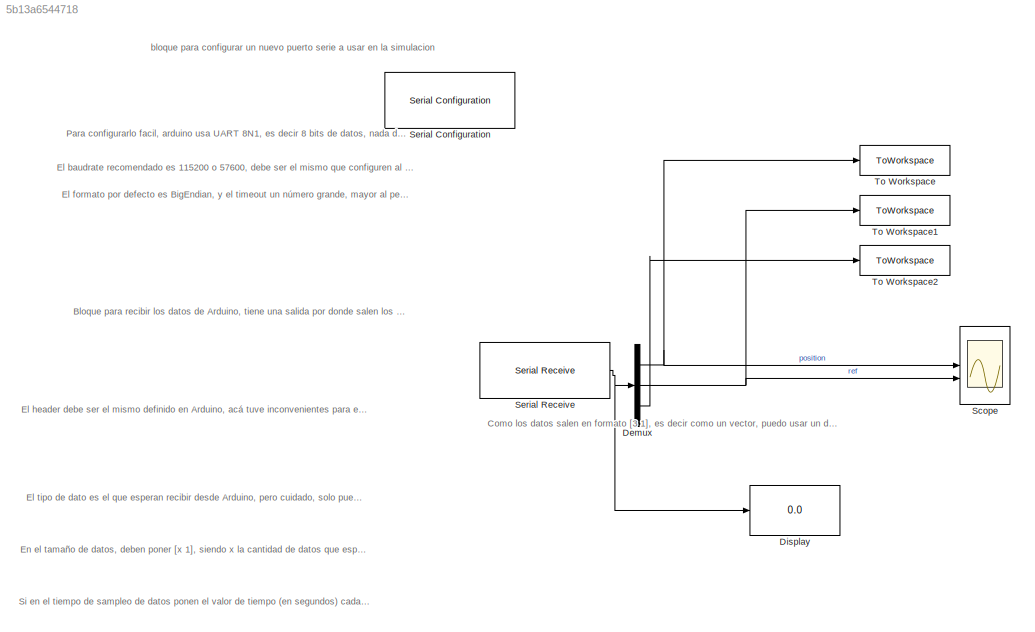
MODEL slx_5b13a6544718
KIND model
CONFIG AbsTol = auto
CONFIG EnableMultiTasking = off
CONFIG FixedStep = auto
CONFIG MaxStep = auto
CONFIG MinStep = auto
CONFIG RelTol = 1e-3
CONFIG SampleTimeConstraint = Unconstrained
CONFIG SolverName = VariableStepAuto
CONFIG StartTime = 0.0
CONFIG StopTime = Inf
BLOCK [Demux] Demux
  Outputs = 3
BLOCK [Display] Display
  Decimation = 1
BLOCK [Scope] Scope
  Floating = off
  NumInputPorts = 2
  ScopeSpecificationString = Simulink.scopes.TimeScopeBlockCfg('CurrentConfiguration', extmgr.ConfigurationSet(extmgr.Configuration('Core','General UI',true,'FigureColor',[0.8 0.8 0.8]),extmgr.Configuration('Core','Source UI',true),extmgr.Configuration('Sources','WiredSimulink',true),extmgr.Configuration('Visuals','Time Domain',true,'SerializedDisplays',{struct('MinYLimReal','-19.45912','MaxYLimReal','18.63209','YLabelReal','...<+2594ch>
BLOCK [Reference] Serial Configuration  REF=instrumentseriallib/Serial Configuration
  Priority = -200000
  SourceBlock = instrumentseriallib/Serial Configuration
  SourceType = system.SerialConfiguration
BLOCK [Reference] Serial Receive  REF=instrumentseriallib/Serial Receive
  Priority = 1
  SourceBlock = instrumentseriallib/Serial Receive
  SourceType = system.SerialReceive
BLOCK [ToWorkspace] To Workspace
  FixptAsFi = on
  MaxDataPoints = inf
  SampleTime = -1
  Save2DSignal = 2-D array (concatenate along first dimension)
  VariableName = position
BLOCK [ToWorkspace] To Workspace1
  FixptAsFi = on
  MaxDataPoints = inf
  SampleTime = -1
  Save2DSignal = 2-D array (concatenate along first dimension)
  VariableName = ref
BLOCK [ToWorkspace] To Workspace2
  FixptAsFi = on
  MaxDataPoints = inf
  SampleTime = -1
  Save2DSignal = 2-D array (concatenate along first dimension)
  VariableName = action
ANNOTATION (root): Bloque para recibir los datos de Arduino, tiene una salida por donde salen los datos
ANNOTATION (root): Como los datos salen en formato [3 1], es decir como un vector, puedo usar un demux para separarlos y procesarlos.
ANNOTATION (root): El baudrate recomendado es 115200 o 57600, debe ser el mismo que configuren al setear el puerto serie en Arduino
ANNOTATION (root): El formato por defecto es BigEndian, y el timeout un número grande, mayor al período con el cual envian datos
ANNOTATION (root): El header debe ser el mismo definido en Arduino, acá tuve inconvenientes para especificarlo en formato string, así que utilizo el código decimal de los caracteres que mando desde Arduino. Como mando los caracteres "abcd" como header, en este bloque indico que voy a recibir [97 98 99 100], que son los códigos decimales ASCII de esas letras. Se debe poder especificar cualquier header binario, probab...<+41ch>
ANNOTATION (root): El tipo de dato es el que esperan recibir desde Arduino, pero cuidado, solo pueden elegir un tipo de dato. Matlab espera recibir o todos floats, o todos enteros de 16 bits, etc. Single es el float, double es el double, el resto son intuitivos.
ANNOTATION (root): En el tamaño de datos, deben poner [x 1], siendo x la cantidad de datos que esperan recibir. Como el codigo de arduino de ejemplo manda 3 datos tipo float, esta configurado como [3 1]
ANNOTATION (root): Para configurarlo facil, arduino usa UART 8N1, es decir 8 bits de datos, nada de paridad, y un bit de stop
ANNOTATION (root): Si en el tiempo de sampleo de datos ponen el valor de tiempo (en segundos) cada el cual envían datos desde arduino, entonces el tiempo de la simulacion va a corresponder con el tiempo de ejecución en arduino. En este caso, el tiempo de 0.02 significa que estoy mandando los 3 floats cada 20 milisegundos desde arduino
ANNOTATION (root): bloque para configurar un nuevo puerto serie a usar en la simulacion
NET Demux:1 -> Scope:1, To Workspace:1
NET Demux:2 -> Scope:2, To Workspace1:1
LINE Demux:3 -> To Workspace2:1
NET Serial Receive:1 -> Demux:1, Display:1
note: NET lines group one-source signal fan-out (src -> all destinations, sorted); 1:1 wires keep LINE
